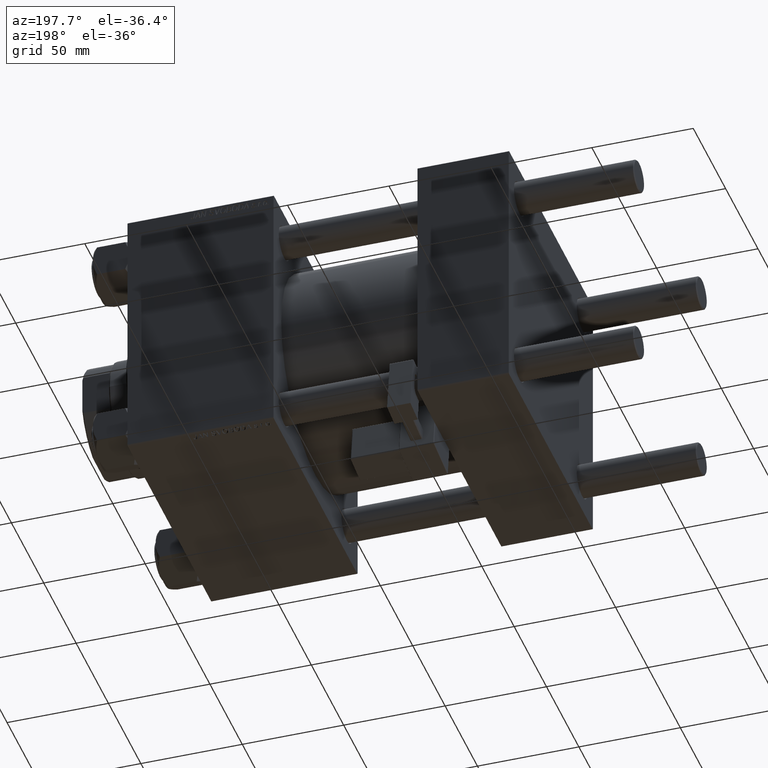
[diagram: clean part render]
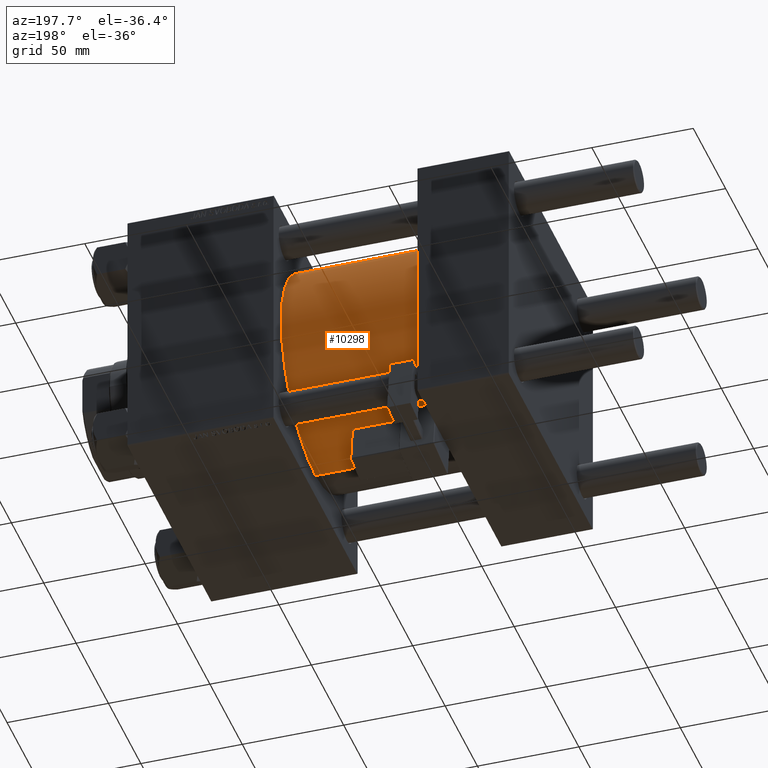
[diagram: same view with one face highlighted and labeled with its STEP entity id]
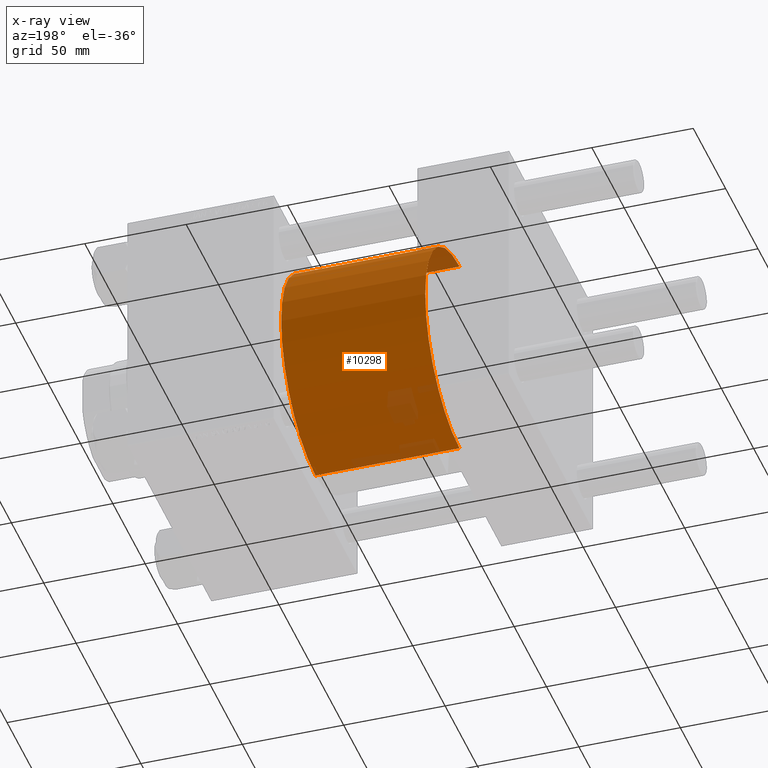
[diagram: x-ray of the same camera — body ghosted, the highlighted face saturated]
A machine part, auxiliary view. The second image highlights one B-rep face of the part: STEP entity #10298.
The next image is the same camera in x-ray: the body ghosted, the highlighted face saturated — about 8% of this face is hidden behind the body in this view.
In plain terms, the highlighted cylindrical surface (partial cylindrical patch) has radius 53 mm, axis along (-1, -0, -0).
Its self-contained STEP definition (entity closure, byte-faithful):
#2337 = VECTOR ( 'NONE', #51096, 1000.000000000000000 ) ;
#3427 = ORIENTED_EDGE ( 'NONE', *, *, #10600, .F. ) ;
#4446 = EDGE_CURVE ( 'NONE', #47023, #43072, #37121, .T. ) ;
#4504 = CARTESIAN_POINT ( 'NONE',  ( 115.9999999999999858, 6.490628035480973107E-15, -53.00000000000000711 ) ) ;
#6534 = LINE ( 'NONE', #34940, #2337 ) ;
#9224 = VERTEX_POINT ( 'NONE', #50030 ) ;
#9480 = VERTEX_POINT ( 'NONE', #31718 ) ;
#10265 = CYLINDRICAL_SURFACE ( 'NONE', #35656, 53.00000000000000711 ) ;
#10298 = ADVANCED_FACE ( 'NONE', ( #49066 ), #10265, .T. ) ;
#10600 = EDGE_CURVE ( 'NONE', #43072, #9480, #14714, .T. ) ;
#10819 = DIRECTION ( 'NONE',  ( 0.000000000000000000, 0.000000000000000000, 1.000000000000000000 ) ) ;
#10939 = ORIENTED_EDGE ( 'NONE', *, *, #16482, .T. ) ;
#12302 = DIRECTION ( 'NONE',  ( 0.000000000000000000, 0.000000000000000000, -1.000000000000000000 ) ) ;
#12689 = CARTESIAN_POINT ( 'NONE',  ( 115.9999999999999858, 0.000000000000000000, 53.00000000000000711 ) ) ;
#14446 = DIRECTION ( 'NONE',  ( -1.000000000000000000, -0.000000000000000000, -0.000000000000000000 ) ) ;
#14714 = LINE ( 'NONE', #47334, #30576 ) ;
#14953 = AXIS2_PLACEMENT_3D ( 'NONE', #23031, #51901, #10819 ) ;
#15966 = AXIS2_PLACEMENT_3D ( 'NONE', #43909, #52095, #12302 ) ;
#16482 = EDGE_CURVE ( 'NONE', #9224, #9480, #36972, .T. ) ;
#20892 = EDGE_CURVE ( 'NONE', #47023, #9224, #6534, .T. ) ;
#23031 = CARTESIAN_POINT ( 'NONE',  ( 45.00000000000000000, 0.000000000000000000, 0.000000000000000000 ) ) ;
#24168 = EDGE_LOOP ( 'NONE', ( #44229, #47030, #10939, #3427 ) ) ;
#26452 = DIRECTION ( 'NONE',  ( -1.000000000000000000, -0.000000000000000000, -0.000000000000000000 ) ) ;
#28907 = DIRECTION ( 'NONE',  ( 0.000000000000000000, 0.000000000000000000, 1.000000000000000000 ) ) ;
#30576 = VECTOR ( 'NONE', #14446, 1000.000000000000000 ) ;
#31718 = CARTESIAN_POINT ( 'NONE',  ( 45.00000000000000000, 0.000000000000000000, 53.00000000000000711 ) ) ;
#34940 = CARTESIAN_POINT ( 'NONE',  ( 115.9999999999999858, 6.490628035480973107E-15, -53.00000000000000711 ) ) ;
#35656 = AXIS2_PLACEMENT_3D ( 'NONE', #42107, #26452, #28907 ) ;
#36972 = CIRCLE ( 'NONE', #14953, 53.00000000000000711 ) ;
#37121 = CIRCLE ( 'NONE', #15966, 53.00000000000000711 ) ;
#42107 = CARTESIAN_POINT ( 'NONE',  ( 115.9999999999999858, 0.000000000000000000, 0.000000000000000000 ) ) ;
#43072 = VERTEX_POINT ( 'NONE', #12689 ) ;
#43909 = CARTESIAN_POINT ( 'NONE',  ( 115.9999999999999858, 0.000000000000000000, 0.000000000000000000 ) ) ;
#44229 = ORIENTED_EDGE ( 'NONE', *, *, #4446, .F. ) ;
#47023 = VERTEX_POINT ( 'NONE', #4504 ) ;
#47030 = ORIENTED_EDGE ( 'NONE', *, *, #20892, .T. ) ;
#47334 = CARTESIAN_POINT ( 'NONE',  ( 115.9999999999999858, 0.000000000000000000, 53.00000000000000711 ) ) ;
#49066 = FACE_OUTER_BOUND ( 'NONE', #24168, .T. ) ;
#50030 = CARTESIAN_POINT ( 'NONE',  ( 45.00000000000000000, 6.490628035480973107E-15, -53.00000000000000711 ) ) ;
#51096 = DIRECTION ( 'NONE',  ( -1.000000000000000000, -0.000000000000000000, -0.000000000000000000 ) ) ;
#51901 = DIRECTION ( 'NONE',  ( 1.000000000000000000, -0.000000000000000000, 0.000000000000000000 ) ) ;
#52095 = DIRECTION ( 'NONE',  ( 1.000000000000000000, 0.000000000000000000, 0.000000000000000000 ) ) ;